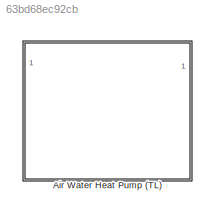
MODEL slx_63bd68ec92cb
KIND library
CONFIG AbsTol = auto
CONFIG EnableMultiTasking = off
CONFIG FixedStep = auto
CONFIG MaxStep = auto
CONFIG MinStep = auto
CONFIG RelTol = 1e-3
CONFIG SampleTimeConstraint = Unconstrained
CONFIG SolverName = VariableStepAuto
CONFIG StartTime = 0.0
CONFIG StopTime = 10.0
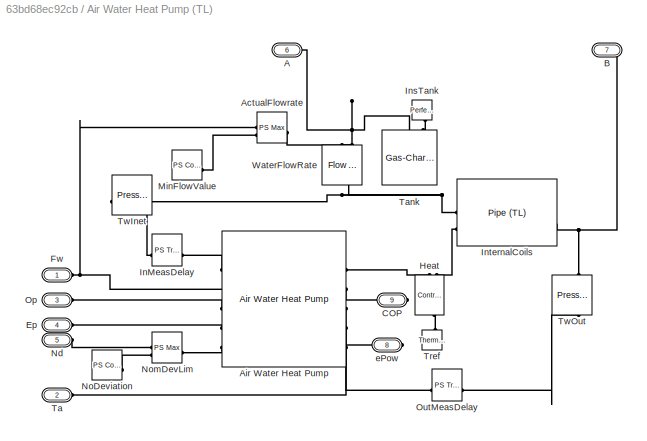
BLOCK [SubSystem] Air Water Heat Pump (TL)
BLOCK [PMIOPort] Air Water Heat Pump (TL)/A
  NameLocation = left
  Port = 6
  Side = Right
BLOCK [Reference] Air Water Heat Pump (TL)/ActualFlowrate  REF=fl_lib/Physical Signals/Nonlinear Operators/PS Max
  SourceBlock = fl_lib/Physical Signals/Nonlinear Operators/PS Max
  SourceType = PS Max
BLOCK [Reference] Air Water Heat Pump (TL)/Air Water Heat Pump  REF=AirWaterHeatPump_lib/Air Water Heat Pump
  SourceBlock = AirWaterHeatPump_lib/Air Water Heat Pump
  SourceType = Air Water Heat Pump
BLOCK [PMIOPort] Air Water Heat Pump (TL)/B
  NameLocation = right
  Port = 7
  Side = Right
BLOCK [PMIOPort] Air Water Heat Pump (TL)/COP
  Port = 9
  Side = Right
BLOCK [PMIOPort] Air Water Heat Pump (TL)/Ep
  NameLocation = left
  Port = 4
  Side = Left
BLOCK [PMIOPort] Air Water Heat Pump (TL)/Fw
  NameLocation = left
  Side = Left
BLOCK [Reference] Air Water Heat Pump (TL)/Heat  REF=fl_lib/Thermal/Thermal Sources/Controlled Heat Flow
Rate Source
  NameLocation = right
  SourceBlock = fl_lib/Thermal/Thermal Sources/Controlled Heat Flow\nRate Source
  SourceType = Controlled Heat Flow\nRate Source
BLOCK [Reference] Air Water Heat Pump (TL)/InMeasDelay  REF=fl_lib/Physical Signals/Linear Operators/PS Transfer Function
  NameLocation = top
  SourceBlock = fl_lib/Physical Signals/Linear Operators/PS Transfer Function
  SourceType = PS Transfer Function
BLOCK [Reference] Air Water Heat Pump (TL)/InsTank  REF=fl_lib/Thermal/Thermal Elements/Perfect Insulator
  NameLocation = right
  SourceBlock = fl_lib/Thermal/Thermal Elements/Perfect Insulator
  SourceType = Perfect Insulator
BLOCK [Reference] Air Water Heat Pump (TL)/InternalCoils  REF=fl_lib/Thermal Liquid/Elements/Pipe (TL)
  NameLocation = top
  SourceBlock = fl_lib/Thermal Liquid/Elements/Pipe (TL)
  SourceType = Pipe (TL)
BLOCK [Reference] Air Water Heat Pump (TL)/MinFlowValue  REF=fl_lib/Physical Signals/Sources/PS Constant
  NameLocation = top
  SourceBlock = fl_lib/Physical Signals/Sources/PS Constant
  SourceType = PS Constant
BLOCK [PMIOPort] Air Water Heat Pump (TL)/Nd
  NameLocation = left
  Port = 5
  Side = Left
BLOCK [Reference] Air Water Heat Pump (TL)/NoDeviation  REF=fl_lib/Physical Signals/Sources/PS Constant
  NameLocation = left
  SourceBlock = fl_lib/Physical Signals/Sources/PS Constant
  SourceType = PS Constant
BLOCK [Reference] Air Water Heat Pump (TL)/NomDevLim  REF=fl_lib/Physical Signals/Nonlinear Operators/PS Max
  SourceBlock = fl_lib/Physical Signals/Nonlinear Operators/PS Max
  SourceType = PS Max
BLOCK [PMIOPort] Air Water Heat Pump (TL)/Op
  NameLocation = left
  Port = 3
  Side = Left
BLOCK [Reference] Air Water Heat Pump (TL)/OutMeasDelay  REF=fl_lib/Physical Signals/Linear Operators/PS Transfer Function
  SourceBlock = fl_lib/Physical Signals/Linear Operators/PS Transfer Function
  SourceType = PS Transfer Function
BLOCK [PMIOPort] Air Water Heat Pump (TL)/Ta
  NameLocation = left
  Port = 2
  Side = Left
BLOCK [Reference] Air Water Heat Pump (TL)/Tank  REF=SimscapeFluids_lib/Thermal Liquid/Tanks & Accumulators/Gas-Charged
Accumulator (TL)
  NameLocation = right
  SourceBlock = SimscapeFluids_lib/Thermal Liquid/Tanks & Accumulators/Gas-Charged\nAccumulator (TL)
  SourceType = Gas-Charged\nAccumulator (TL)
BLOCK [Reference] Air Water Heat Pump (TL)/Tref  REF=fl_lib/Thermal/Thermal Elements/Thermal Reference
  NameLocation = right
  SourceBlock = fl_lib/Thermal/Thermal Elements/Thermal Reference
  SourceType = Thermal Reference
BLOCK [Reference] Air Water Heat Pump (TL)/TwInet  REF=fl_lib/Thermal Liquid/Sensors/Pressure &
Temperature Sensor
(TL)
  NameLocation = top
  SourceBlock = fl_lib/Thermal Liquid/Sensors/Pressure &\nTemperature Sensor\n(TL)
  SourceType = Pressure &\nTemperature Sensor\n(TL)
BLOCK [Reference] Air Water Heat Pump (TL)/TwOut  REF=fl_lib/Thermal Liquid/Sensors/Pressure &
Temperature Sensor
(TL)
  NameLocation = right
  SourceBlock = fl_lib/Thermal Liquid/Sensors/Pressure &\nTemperature Sensor\n(TL)
  SourceType = Pressure &\nTemperature Sensor\n(TL)
BLOCK [Reference] Air Water Heat Pump (TL)/WaterFlowRate  REF=fl_lib/Thermal Liquid/Sources/Flow Rate Source
(TL)
  NameLocation = left
  SourceBlock = fl_lib/Thermal Liquid/Sources/Flow Rate Source\n(TL)
  SourceType = Flow Rate Source\n(TL)
BLOCK [PMIOPort] Air Water Heat Pump (TL)/ePow
  Port = 8
  Side = Right
PNET net1: Air Water Heat Pump (TL)/A:RConn1 -- Air Water Heat Pump (TL)/Tank:RConn1 -- Air Water Heat Pump (TL)/WaterFlowRate:LConn1
PNET net2: Air Water Heat Pump (TL)/ActualFlowrate:LConn1 -- Air Water Heat Pump (TL)/Air Water Heat Pump:LConn2 -- Air Water Heat Pump (TL)/Fw:RConn1
PLINE Air Water Heat Pump (TL)/ActualFlowrate:LConn2 -- Air Water Heat Pump (TL)/MinFlowValue:RConn1
PLINE Air Water Heat Pump (TL)/ActualFlowrate:RConn1 -- Air Water Heat Pump (TL)/WaterFlowRate:LConn2
PLINE Air Water Heat Pump (TL)/Air Water Heat Pump:LConn1 -- Air Water Heat Pump (TL)/InMeasDelay:RConn1
PLINE Air Water Heat Pump (TL)/Air Water Heat Pump:LConn3 -- Air Water Heat Pump (TL)/Op:RConn1
PLINE Air Water Heat Pump (TL)/Air Water Heat Pump:LConn4 -- Air Water Heat Pump (TL)/Ep:RConn1
PLINE Air Water Heat Pump (TL)/Air Water Heat Pump:LConn5 -- Air Water Heat Pump (TL)/NomDevLim:RConn1
PLINE Air Water Heat Pump (TL)/Air Water Heat Pump:RConn1 -- Air Water Heat Pump (TL)/Heat:RConn1
PLINE Air Water Heat Pump (TL)/Air Water Heat Pump:RConn2 -- Air Water Heat Pump (TL)/COP:RConn1
PLINE Air Water Heat Pump (TL)/Air Water Heat Pump:RConn3 -- Air Water Heat Pump (TL)/ePow:RConn1
PLINE Air Water Heat Pump (TL)/Air Water Heat Pump:RConn4 -- Air Water Heat Pump (TL)/Ta:RConn1
PLINE Air Water Heat Pump (TL)/Air Water Heat Pump:RConn5 -- Air Water Heat Pump (TL)/OutMeasDelay:RConn1
PNET net3: Air Water Heat Pump (TL)/B:RConn1 -- Air Water Heat Pump (TL)/InternalCoils:RConn1 -- Air Water Heat Pump (TL)/TwOut:LConn1
PLINE Air Water Heat Pump (TL)/Heat:LConn1 -- Air Water Heat Pump (TL)/Tref:LConn1
PLINE Air Water Heat Pump (TL)/Heat:RConn2 -- Air Water Heat Pump (TL)/InternalCoils:LConn2
PLINE Air Water Heat Pump (TL)/InMeasDelay:LConn1 -- Air Water Heat Pump (TL)/TwInet:RConn1
PLINE Air Water Heat Pump (TL)/InsTank:LConn1 -- Air Water Heat Pump (TL)/Tank:RConn2
PNET net4: Air Water Heat Pump (TL)/InternalCoils:LConn1 -- Air Water Heat Pump (TL)/TwInet:LConn1 -- Air Water Heat Pump (TL)/WaterFlowRate:RConn1
PLINE Air Water Heat Pump (TL)/Nd:RConn1 -- Air Water Heat Pump (TL)/NomDevLim:LConn1
PLINE Air Water Heat Pump (TL)/NoDeviation:RConn1 -- Air Water Heat Pump (TL)/NomDevLim:LConn2
PLINE Air Water Heat Pump (TL)/OutMeasDelay:LConn1 -- Air Water Heat Pump (TL)/TwOut:RConn1
note: PNET lines group multi-terminal physical nets as a canonical sorted terminal list (undirected conserving connections); 2-terminal nets keep the pairwise PLINE form
